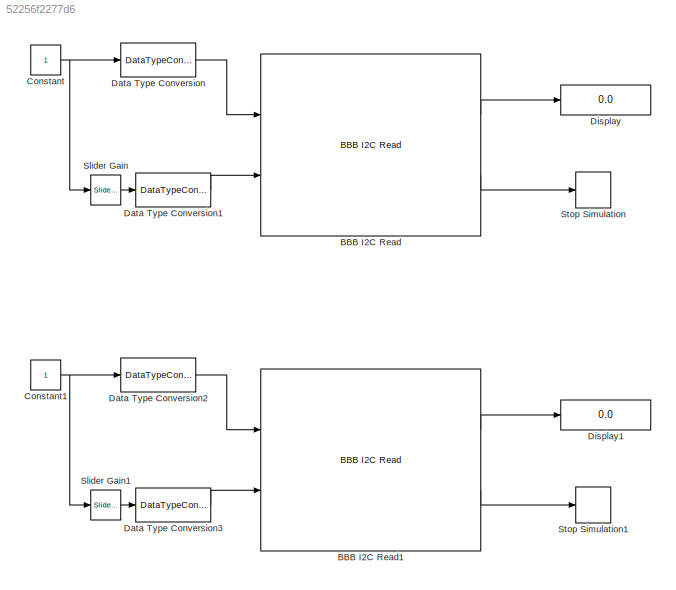
MODEL slx_52256f2277d6
KIND model
BLOCK [Reference] BBB I2C Read  REF=BLACKlink/BBB I2C Read
  BBB_DebugInfo = Debug Level 4 - Include Device Registery Read-Out
  BBB_I2CAddress = 104
  BBB_I2CBusNo = BeagleBone Black I2C Channel 1
  BBB_I2CRegister = 0
  Ports = [2, 2]
  SourceBlock = BLACKlink/BBB I2C Read
  SourceType = BLACKlink Album - BBB_I2C_Read
BLOCK [Reference] BBB I2C Read1  REF=BLACKlink/BBB I2C Read
  BBB_DebugInfo = Debug Level 4 - Include Device Registery Read-Out
  BBB_I2CAddress = 104
  BBB_I2CBusNo = BeagleBone Black I2C Channel 1
  BBB_I2CRegister = 0
  Ports = [2, 2]
  SourceBlock = BLACKlink/BBB I2C Read
  SourceType = BLACKlink Album - BBB_I2C_Read
BLOCK [Constant] Constant
BLOCK [Constant] Constant1
BLOCK [DataTypeConversion] Data Type Conversion
  OutDataTypeStr = boolean
  OutMax = [1]
  OutMin = [0]
  RndMeth = Floor
  SaturateOnIntegerOverflow = off
BLOCK [DataTypeConversion] Data Type Conversion1
  OutDataTypeStr = boolean
  OutMax = [1]
  OutMin = [0]
  RndMeth = Floor
  SaturateOnIntegerOverflow = off
BLOCK [DataTypeConversion] Data Type Conversion2
  OutDataTypeStr = boolean
  OutMax = [1]
  OutMin = [0]
  RndMeth = Floor
  SaturateOnIntegerOverflow = off
BLOCK [DataTypeConversion] Data Type Conversion3
  OutDataTypeStr = boolean
  OutMax = [1]
  OutMin = [0]
  RndMeth = Floor
  SaturateOnIntegerOverflow = off
BLOCK [Display] Display
  Decimation = 1
  Format = hex (Stored Integer)
  Lockdown = off
  Ports = [1]
BLOCK [Display] Display1
  Decimation = 1
  Format = hex (Stored Integer)
  Lockdown = off
  Ports = [1]
BLOCK [Reference] Slider Gain  REF=simulink/Math
Operations/Slider
Gain
  Ports = [1, 1]
  SourceBlock = simulink/Math\nOperations/Slider\nGain
  SourceType = Slider Gain
  gain = 1
  high = 1
  low = 0
BLOCK [Reference] Slider Gain1  REF=simulink/Math
Operations/Slider
Gain
  Ports = [1, 1]
  SourceBlock = simulink/Math\nOperations/Slider\nGain
  SourceType = Slider Gain
  gain = 1
  high = 1
  low = 0
BLOCK [Stop] Stop Simulation
BLOCK [Stop] Stop Simulation1
LINE BBB I2C Read1:1 -> Display1:1
LINE BBB I2C Read1:2 -> Stop Simulation1:1
LINE BBB I2C Read:1 -> Display:1
LINE BBB I2C Read:2 -> Stop Simulation:1
NET Constant1:1 -> Data Type Conversion2:1, Slider Gain1:1
NET Constant:1 -> Data Type Conversion:1, Slider Gain:1
LINE Data Type Conversion1:1 -> BBB I2C Read:2
LINE Data Type Conversion2:1 -> BBB I2C Read1:1
LINE Data Type Conversion3:1 -> BBB I2C Read1:2
LINE Data Type Conversion:1 -> BBB I2C Read:1
LINE Slider Gain1:1 -> Data Type Conversion3:1
LINE Slider Gain:1 -> Data Type Conversion1:1
note: NET lines group one-source signal fan-out (src -> all destinations, sorted); 1:1 wires keep LINE
